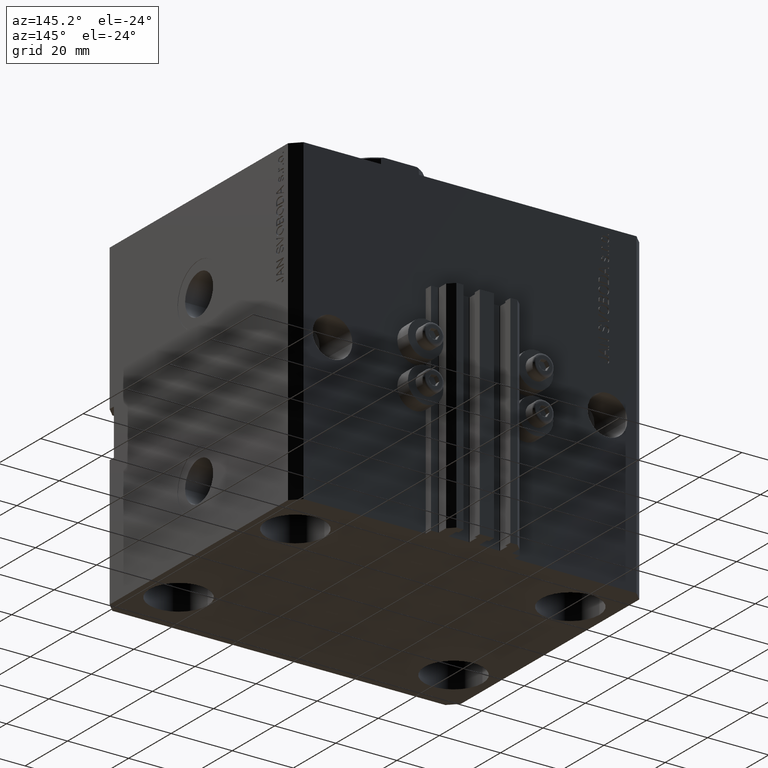
[diagram: clean part render]
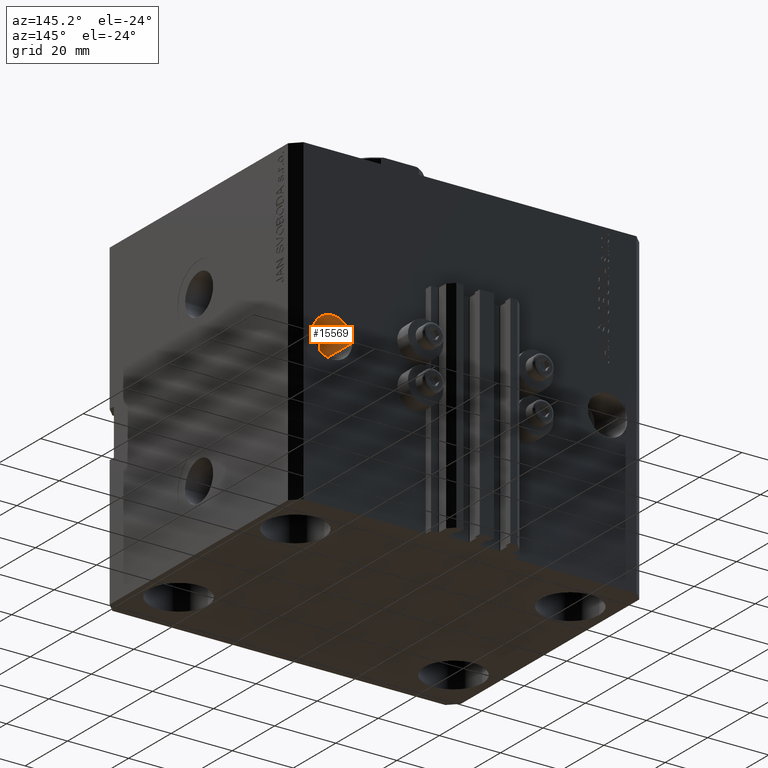
[diagram: same view with one face highlighted and labeled with its STEP entity id]
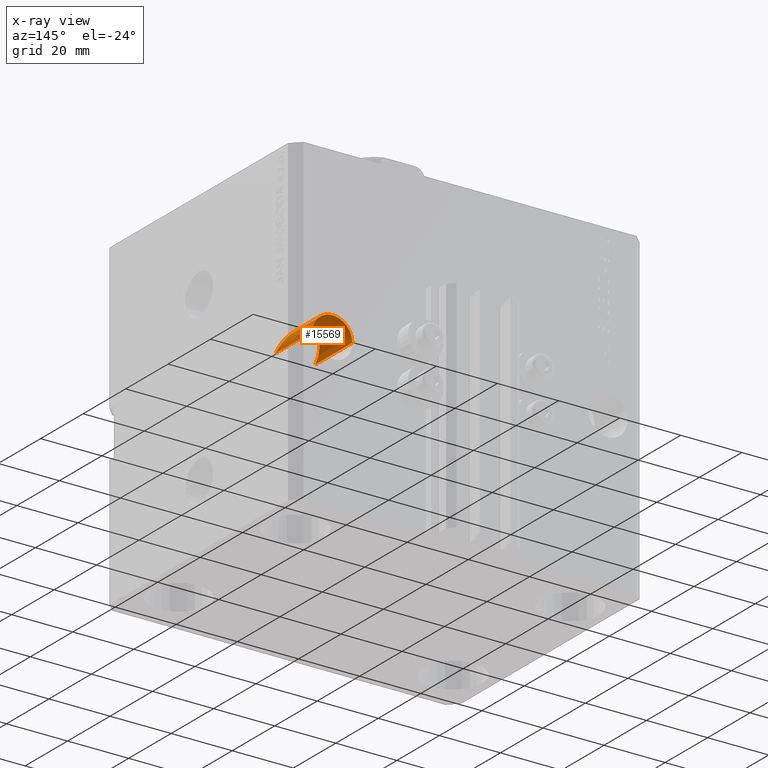
[diagram: x-ray of the same camera — body ghosted, the highlighted face saturated]
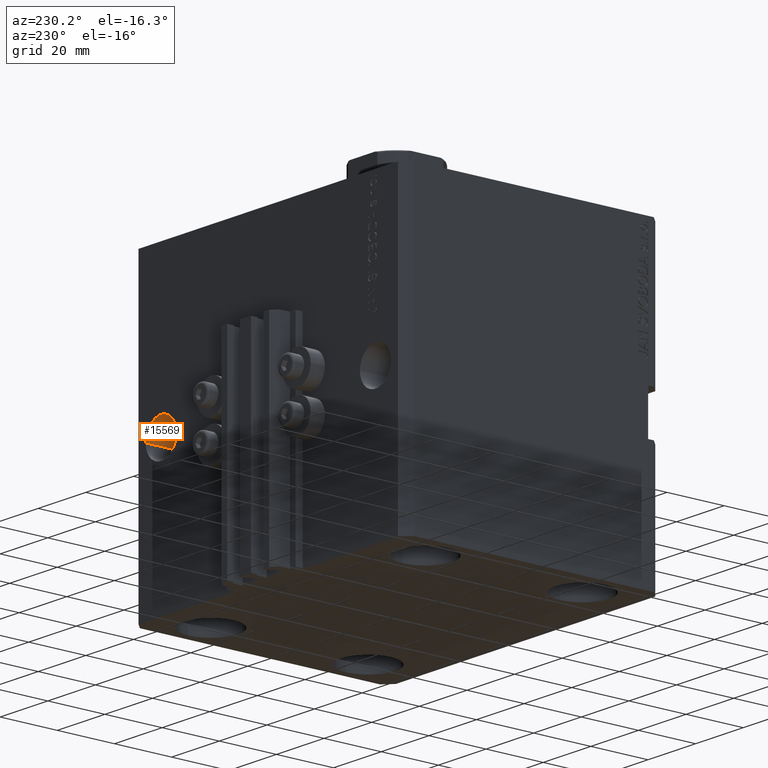
[diagram: same view with one face highlighted and labeled with its STEP entity id]
A machine part, auxiliary view. The second image highlights one B-rep face of the part: STEP entity #15569.
The next image is the same camera in x-ray: the body ghosted, the highlighted face saturated — about 0% of this face is hidden behind the body in this view.
A second angle (auxiliary view) of the same face is appended — the face is thin or edge-on in the first view.
In plain terms, the highlighted cylindrical surface (edge-blend (fillet) strip) has radius 6.5 mm, axis along (0, -1, 0).
Its self-contained STEP definition (entity closure, byte-faithful):
#2697 = DIRECTION ( 'NONE',  ( 1.101411730780568590E-16, -1.000000000000000000, -0.000000000000000000 ) ) ;
#5881 = CARTESIAN_POINT ( 'NONE',  ( 51.50000000000000000, 27.50000000000001776, -55.00000000000000000 ) ) ;
#5895 = CARTESIAN_POINT ( 'NONE',  ( 51.50000000000000711, 45.00000000000002842, -55.00000000000000000 ) ) ;
#6151 = CARTESIAN_POINT ( 'NONE',  ( 38.50000000000000000, 27.50000000000001776, -55.00000000000000000 ) ) ;
#7263 = DIRECTION ( 'NONE',  ( 1.000000000000000000, 0.000000000000000000, 0.000000000000000000 ) ) ;
#7425 = DIRECTION ( 'NONE',  ( 1.101411730780568590E-16, -1.000000000000000000, -0.000000000000000000 ) ) ;
#8606 = AXIS2_PLACEMENT_3D ( 'NONE', #47413, #13693, #7263 ) ;
#9847 = CARTESIAN_POINT ( 'NONE',  ( 51.50000000000000000, 40.50000000000001421, -42.00000000000000000 ) ) ;
#10573 = CARTESIAN_POINT ( 'NONE',  ( 38.50000000000000711, 53.00000000000003553, -55.00000000000000000 ) ) ;
#13693 = DIRECTION ( 'NONE',  ( 1.101411730780568590E-16, -1.000000000000000000, -0.000000000000000000 ) ) ;
#14105 = LINE ( 'NONE', #33534, #17365 ) ;
#15569 = ADVANCED_FACE ( 'NONE', ( #17146 ), #47168, .F. ) ;
#17146 = FACE_OUTER_BOUND ( 'NONE', #27493, .T. ) ;
#17365 = VECTOR ( 'NONE', #7425, 1000.000000000000000 ) ;
#17495 = LINE ( 'NONE', #10573, #43554 ) ;
#19911 = VERTEX_POINT ( 'NONE', #43468 ) ;
#20098 = DIRECTION ( 'NONE',  ( -1.000000000000000000, 0.000000000000000000, 0.000000000000000000 ) ) ;
#22567 = EDGE_CURVE ( 'NONE', #19911, #37175, #17495, .T. ) ;
#23183 = ORIENTED_EDGE ( 'NONE', *, *, #22567, .F. ) ;
#23921 = ORIENTED_EDGE ( 'NONE', *, *, #28994, .T. ) ;
#25591 = EDGE_CURVE ( 'NONE', #37175, #47683, #48059, .T. ) ;
#27493 = EDGE_LOOP ( 'NONE', ( #23183, #23921, #33741, #31731 ) ) ;
#28994 = EDGE_CURVE ( 'NONE', #19911, #31919, #32614, .T. ) ;
#31731 = ORIENTED_EDGE ( 'NONE', *, *, #25591, .F. ) ;
#31919 = VERTEX_POINT ( 'NONE', #5895 ) ;
#32510 = CARTESIAN_POINT ( 'NONE',  ( 38.49999999999999289, 40.50000000000000711, -42.00000000000000000 ) ) ;
#32614 = CIRCLE ( 'NONE', #40449, 6.499999999999999112 ) ;
#33534 = CARTESIAN_POINT ( 'NONE',  ( 51.50000000000000711, 53.00000000000003553, -55.00000000000000000 ) ) ;
#33741 = ORIENTED_EDGE ( 'NONE', *, *, #46990, .T. ) ;
#37175 = VERTEX_POINT ( 'NONE', #41491 ) ;
#38809 = DIRECTION ( 'NONE',  ( -2.546383084002639322E-16, 1.000000000000000000, 0.000000000000000000 ) ) ;
#40449 = AXIS2_PLACEMENT_3D ( 'NONE', #42508, #38809, #20098 ) ;
#41491 = CARTESIAN_POINT ( 'NONE',  ( 38.50000000000000000, 27.50000000000001776, -55.00000000000000000 ) ) ;
#42508 = CARTESIAN_POINT ( 'NONE',  ( 45.00000000000000711, 45.00000000000002842, -55.00000000000000000 ) ) ;
#43468 = CARTESIAN_POINT ( 'NONE',  ( 38.50000000000000711, 45.00000000000002842, -55.00000000000000000 ) ) ;
#43554 = VECTOR ( 'NONE', #2697, 1000.000000000000000 ) ;
#46990 = EDGE_CURVE ( 'NONE', #31919, #47683, #14105, .T. ) ;
#47168 = CYLINDRICAL_SURFACE ( 'NONE', #8606, 6.499999999999999112 ) ;
#47278 = CARTESIAN_POINT ( 'NONE',  ( 51.50000000000000000, 27.50000000000001776, -55.00000000000000000 ) ) ;
#47413 = CARTESIAN_POINT ( 'NONE',  ( 45.00000000000000711, 53.00000000000003553, -55.00000000000000000 ) ) ;
#47683 = VERTEX_POINT ( 'NONE', #5881 ) ;
#48059 =( BOUNDED_CURVE ( )  B_SPLINE_CURVE ( 3, ( #6151, #32510, #9847, #47278 ),
 .UNSPECIFIED., .F., .T. ) 
 B_SPLINE_CURVE_WITH_KNOTS ( ( 4, 4 ),
 ( 4.712388980384689674, 7.853981633974482790 ),
 .UNSPECIFIED. ) 
 CURVE ( )  GEOMETRIC_REPRESENTATION_ITEM ( )  RATIONAL_B_SPLINE_CURVE ( ( 1.000000000000000000, 0.3333333333333333703, 0.3333333333333333703, 1.000000000000000000 ) ) 
 REPRESENTATION_ITEM ( '' )  );